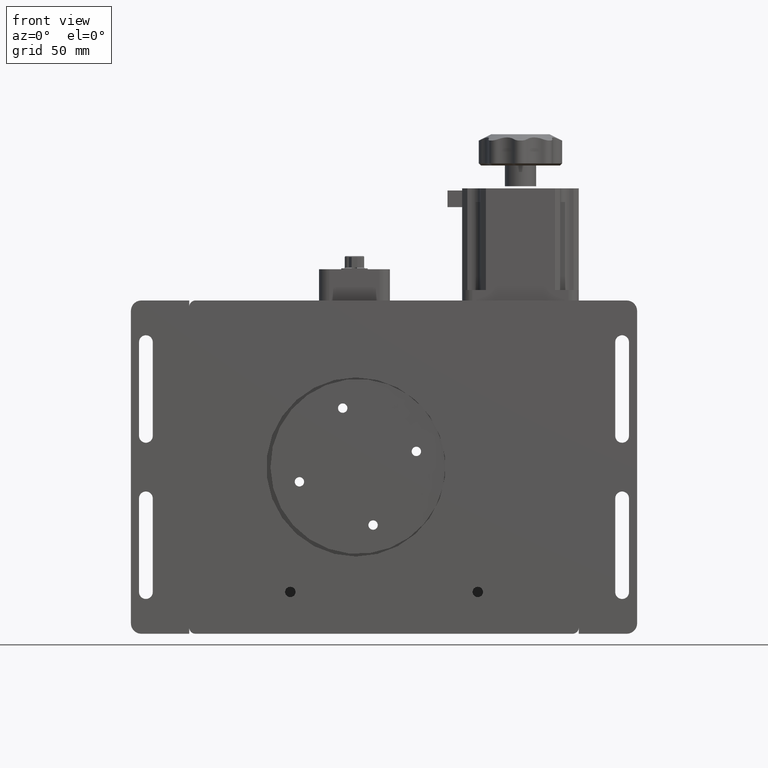
[diagram: clean part render]
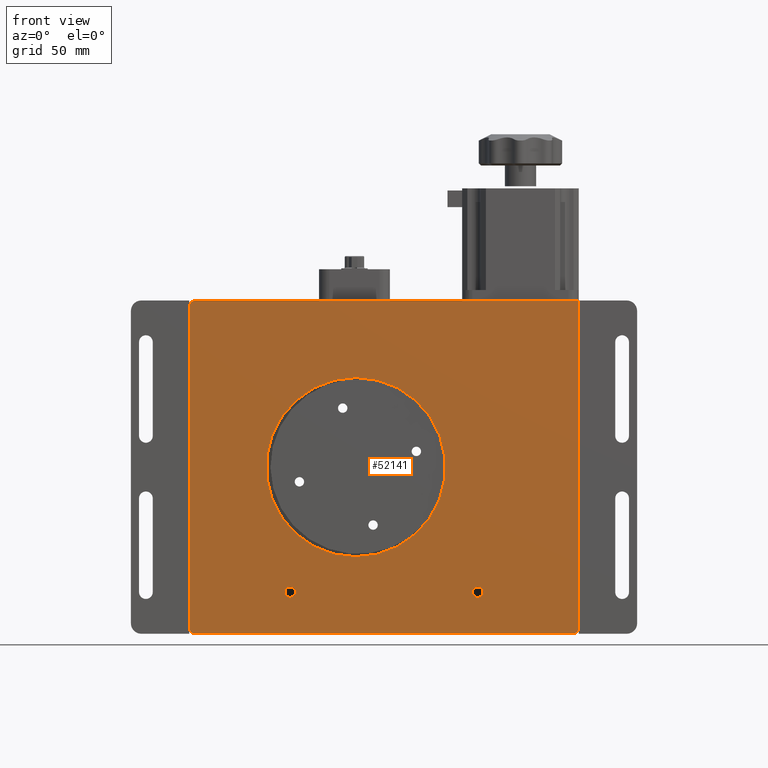
[diagram: same view with one face highlighted and labeled with its STEP entity id]
A machine part, front view. The second image highlights one B-rep face of the part: STEP entity #52141.
In plain terms, the highlighted planar face has unit normal (-0, 1, 0).
Its self-contained STEP definition (entity closure, byte-faithful):
#140 = EDGE_CURVE ( 'NONE', #11367, #93512, #4433, .T. ) ;
#1659 = CARTESIAN_POINT ( 'NONE',  ( 280.5000000000000000, -7.499999999999987600, 80.00000000000002800 ) ) ;
#1766 = CARTESIAN_POINT ( 'NONE',  ( 93.49999999999990100, -7.500000000000018700, -77.00000000000007100 ) ) ;
#3988 = VERTEX_POINT ( 'NONE', #92271 ) ;
#4433 = CIRCLE ( 'NONE', #39732, 2.500000000000002200 ) ;
#4753 = EDGE_CURVE ( 'NONE', #10643, #3988, #6222, .T. ) ;
#5509 = ORIENTED_EDGE ( 'NONE', *, *, #38265, .F. ) ;
#5746 = CIRCLE ( 'NONE', #31976, 2.500000000000002200 ) ;
#6222 = CIRCLE ( 'NONE', #96238, 43.00000000000003600 ) ;
#6587 = VECTOR ( 'NONE', #41096, 1000.000000000000000 ) ;
#6600 = DIRECTION ( 'NONE',  ( 1.782934639968039900E-017, 1.000000000000000000, 1.930919798284918700E-017 ) ) ;
#7267 = VERTEX_POINT ( 'NONE', #81796 ) ;
#8002 = DIRECTION ( 'NONE',  ( 0.0000000000000000000, 2.017120320903262400E-017, -1.000000000000000000 ) ) ;
#8379 = LINE ( 'NONE', #61908, #94763 ) ;
#8486 = EDGE_CURVE ( 'NONE', #22247, #78982, #28799, .T. ) ;
#9328 = ORIENTED_EDGE ( 'NONE', *, *, #13923, .F. ) ;
#10643 = VERTEX_POINT ( 'NONE', #53833 ) ;
#11367 = VERTEX_POINT ( 'NONE', #55139 ) ;
#11856 = CARTESIAN_POINT ( 'NONE',  ( 173.4999999999999400, -7.500000000000015100, -1.353388042383231000E-014 ) ) ;
#12109 = AXIS2_PLACEMENT_3D ( 'NONE', #36412, #94986, #44861 ) ;
#13033 = CARTESIAN_POINT ( 'NONE',  ( 277.5000000000000000, -7.499999999999991100, -80.00000000000005700 ) ) ;
#13101 = CARTESIAN_POINT ( 'NONE',  ( 96.49999999999991500, -7.500000000000015100, 80.00000000000001400 ) ) ;
#13341 = CARTESIAN_POINT ( 'NONE',  ( 173.4999999999999400, -7.500000000000015100, -1.353388042383231000E-014 ) ) ;
#13923 = EDGE_CURVE ( 'NONE', #42310, #65108, #75120, .T. ) ;
#14520 = CIRCLE ( 'NONE', #99095, 2.500000000000002200 ) ;
#14850 = DIRECTION ( 'NONE',  ( 0.0000000000000000000, 0.0000000000000000000, 1.000000000000000000 ) ) ;
#17289 = VERTEX_POINT ( 'NONE', #76413 ) ;
#17391 = FACE_OUTER_BOUND ( 'NONE', #54343, .T. ) ;
#17954 = CARTESIAN_POINT ( 'NONE',  ( 96.49999999999991500, -7.500000000000018700, -77.00000000000007100 ) ) ;
#18778 = CARTESIAN_POINT ( 'NONE',  ( 141.9999999999999400, -7.500000000000008000, -60.00000000000005700 ) ) ;
#19405 = CIRCLE ( 'NONE', #12109, 3.000000000000002700 ) ;
#20247 = DIRECTION ( 'NONE',  ( 0.0000000000000000000, 2.017120320903262400E-017, -1.000000000000000000 ) ) ;
#20285 = EDGE_LOOP ( 'NONE', ( #37882, #31510 ) ) ;
#21948 = CARTESIAN_POINT ( 'NONE',  ( 231.9999999999999400, -7.499999999999998200, -60.00000000000005000 ) ) ;
#22247 = VERTEX_POINT ( 'NONE', #57392 ) ;
#23472 = CARTESIAN_POINT ( 'NONE',  ( 231.9999999999999400, -7.499999999999998200, -62.50000000000005700 ) ) ;
#24406 = AXIS2_PLACEMENT_3D ( 'NONE', #83865, #33693, #92262 ) ;
#26317 = DIRECTION ( 'NONE',  ( -1.000000000000000000, 0.0000000000000000000, 0.0000000000000000000 ) ) ;
#27190 = DIRECTION ( 'NONE',  ( 0.0000000000000000000, 0.0000000000000000000, 1.000000000000000000 ) ) ;
#27804 = LINE ( 'NONE', #35460, #69748 ) ;
#28799 = LINE ( 'NONE', #64629, #6587 ) ;
#30342 = DIRECTION ( 'NONE',  ( 0.0000000000000000000, 0.0000000000000000000, 1.000000000000000000 ) ) ;
#30994 = CIRCLE ( 'NONE', #70712, 3.000000000000002700 ) ;
#31510 = ORIENTED_EDGE ( 'NONE', *, *, #69913, .F. ) ;
#31923 = EDGE_LOOP ( 'NONE', ( #58412, #89432 ) ) ;
#31976 = AXIS2_PLACEMENT_3D ( 'NONE', #39770, #98351, #48241 ) ;
#32832 = ORIENTED_EDGE ( 'NONE', *, *, #97424, .T. ) ;
#33693 = DIRECTION ( 'NONE',  ( -1.120429993953745500E-016, 1.000000000000000000, 1.930919798284919300E-017 ) ) ;
#35460 = CARTESIAN_POINT ( 'NONE',  ( 93.49999999999990100, -7.500000000000015100, 80.00000000000001400 ) ) ;
#36412 = CARTESIAN_POINT ( 'NONE',  ( 96.49999999999991500, -7.500000000000011500, 77.00000000000001400 ) ) ;
#37882 = ORIENTED_EDGE ( 'NONE', *, *, #140, .F. ) ;
#38265 = EDGE_CURVE ( 'NONE', #87396, #17289, #14520, .T. ) ;
#39004 = AXIS2_PLACEMENT_3D ( 'NONE', #17954, #76508, #26317 ) ;
#39732 = AXIS2_PLACEMENT_3D ( 'NONE', #89551, #71622, #14850 ) ;
#39770 = CARTESIAN_POINT ( 'NONE',  ( 141.9999999999999400, -7.500000000000008000, -60.00000000000005700 ) ) ;
#40145 = DIRECTION ( 'NONE',  ( 1.120429993953747700E-016, -1.000000000000000000, -1.930919798284919300E-017 ) ) ;
#40432 = CARTESIAN_POINT ( 'NONE',  ( 280.5000000000000000, -7.499999999999991100, -77.00000000000005700 ) ) ;
#41096 = DIRECTION ( 'NONE',  ( -5.551115123125781500E-017, 1.930919798284917800E-017, -1.000000000000000000 ) ) ;
#41455 = ORIENTED_EDGE ( 'NONE', *, *, #8486, .T. ) ;
#42310 = VERTEX_POINT ( 'NONE', #58778 ) ;
#44861 = DIRECTION ( 'NONE',  ( -1.000000000000000000, 0.0000000000000000000, 0.0000000000000000000 ) ) ;
#47602 = VERTEX_POINT ( 'NONE', #13101 ) ;
#48241 = DIRECTION ( 'NONE',  ( 0.0000000000000000000, 0.0000000000000000000, 1.000000000000000000 ) ) ;
#50143 = EDGE_CURVE ( 'NONE', #3988, #10643, #50590, .T. ) ;
#50431 = EDGE_CURVE ( 'NONE', #78982, #7267, #108042, .T. ) ;
#50590 = CIRCLE ( 'NONE', #74800, 43.00000000000003600 ) ;
#51705 = DIRECTION ( 'NONE',  ( -5.551115123125781500E-017, 1.930919798284917800E-017, -1.000000000000000000 ) ) ;
#52141 = ADVANCED_FACE ( 'NONE', ( #103775, #84174, #61956, #17391 ), #83141, .F. ) ;
#53833 = CARTESIAN_POINT ( 'NONE',  ( 173.4999999999999400, -7.500000000000016000, 43.00000000000000000 ) ) ;
#54049 = CARTESIAN_POINT ( 'NONE',  ( 141.9999999999999400, -7.500000000000008000, -57.50000000000005000 ) ) ;
#54343 = EDGE_LOOP ( 'NONE', ( #63516, #55480, #41455, #97028, #32832, #79620, #9328 ) ) ;
#54731 = AXIS2_PLACEMENT_3D ( 'NONE', #21948, #80497, #30342 ) ;
#55139 = CARTESIAN_POINT ( 'NONE',  ( 231.9999999999999400, -7.499999999999998200, -57.50000000000004300 ) ) ;
#55480 = ORIENTED_EDGE ( 'NONE', *, *, #55985, .T. ) ;
#55985 = EDGE_CURVE ( 'NONE', #47602, #22247, #19405, .T. ) ;
#57392 = CARTESIAN_POINT ( 'NONE',  ( 93.49999999999990100, -7.500000000000015100, 77.00000000000001400 ) ) ;
#58412 = ORIENTED_EDGE ( 'NONE', *, *, #50143, .T. ) ;
#58778 = CARTESIAN_POINT ( 'NONE',  ( 280.5000000000000000, -7.499999999999987600, 80.00000000000002800 ) ) ;
#61908 = CARTESIAN_POINT ( 'NONE',  ( 93.49999999999990100, -7.500000000000018700, -80.00000000000007100 ) ) ;
#61956 = FACE_BOUND ( 'NONE', #31923, .T. ) ;
#63516 = ORIENTED_EDGE ( 'NONE', *, *, #69766, .F. ) ;
#64629 = CARTESIAN_POINT ( 'NONE',  ( 93.49999999999990100, -7.500000000000015100, 80.00000000000001400 ) ) ;
#65106 = ORIENTED_EDGE ( 'NONE', *, *, #101677, .F. ) ;
#65108 = VERTEX_POINT ( 'NONE', #40432 ) ;
#68723 = EDGE_CURVE ( 'NONE', #79190, #65108, #30994, .T. ) ;
#69212 = DIRECTION ( 'NONE',  ( 1.000000000000000000, 1.120429993953745500E-016, -5.551115123125781500E-017 ) ) ;
#69748 = VECTOR ( 'NONE', #69212, 1000.000000000000000 ) ;
#69766 = EDGE_CURVE ( 'NONE', #47602, #42310, #27804, .T. ) ;
#69913 = EDGE_CURVE ( 'NONE', #93512, #11367, #88017, .T. ) ;
#70309 = DIRECTION ( 'NONE',  ( 1.000000000000000000, 1.120429993953745500E-016, -5.551115123125781500E-017 ) ) ;
#70408 = DIRECTION ( 'NONE',  ( 1.782934639968039900E-017, 1.000000000000000000, 1.930919798284918700E-017 ) ) ;
#70712 = AXIS2_PLACEMENT_3D ( 'NONE', #90330, #40145, #98702 ) ;
#71622 = DIRECTION ( 'NONE',  ( -1.782934639968039900E-017, -1.000000000000000000, -1.930919798284918700E-017 ) ) ;
#74800 = AXIS2_PLACEMENT_3D ( 'NONE', #11856, #70408, #20247 ) ;
#75120 = LINE ( 'NONE', #1659, #97393 ) ;
#76413 = CARTESIAN_POINT ( 'NONE',  ( 141.9999999999999400, -7.500000000000008000, -62.50000000000005700 ) ) ;
#76508 = DIRECTION ( 'NONE',  ( 1.120429993953747700E-016, -1.000000000000000000, -1.930919798284919300E-017 ) ) ;
#77358 = DIRECTION ( 'NONE',  ( -1.782934639968039900E-017, -1.000000000000000000, -1.930919798284918700E-017 ) ) ;
#78982 = VERTEX_POINT ( 'NONE', #1766 ) ;
#79190 = VERTEX_POINT ( 'NONE', #13033 ) ;
#79620 = ORIENTED_EDGE ( 'NONE', *, *, #68723, .T. ) ;
#80497 = DIRECTION ( 'NONE',  ( -1.782934639968039900E-017, -1.000000000000000000, -1.930919798284918700E-017 ) ) ;
#81796 = CARTESIAN_POINT ( 'NONE',  ( 96.49999999999991500, -7.500000000000018700, -80.00000000000007100 ) ) ;
#83141 = PLANE ( 'NONE',  #24406 ) ;
#83865 = CARTESIAN_POINT ( 'NONE',  ( 93.49999999999990100, -7.500000000000015100, 80.00000000000001400 ) ) ;
#84174 = FACE_BOUND ( 'NONE', #20285, .T. ) ;
#87396 = VERTEX_POINT ( 'NONE', #54049 ) ;
#88017 = CIRCLE ( 'NONE', #54731, 2.500000000000002200 ) ;
#89432 = ORIENTED_EDGE ( 'NONE', *, *, #4753, .T. ) ;
#89551 = CARTESIAN_POINT ( 'NONE',  ( 231.9999999999999400, -7.499999999999998200, -60.00000000000005000 ) ) ;
#90330 = CARTESIAN_POINT ( 'NONE',  ( 277.5000000000000000, -7.499999999999991100, -77.00000000000005700 ) ) ;
#92262 = DIRECTION ( 'NONE',  ( -1.000000000000000000, -1.120429993953745500E-016, 5.551115123125781500E-017 ) ) ;
#92271 = CARTESIAN_POINT ( 'NONE',  ( 173.4999999999999400, -7.500000000000014200, -43.00000000000005000 ) ) ;
#93512 = VERTEX_POINT ( 'NONE', #23472 ) ;
#94763 = VECTOR ( 'NONE', #70309, 1000.000000000000000 ) ;
#94986 = DIRECTION ( 'NONE',  ( 1.120429993953747700E-016, -1.000000000000000000, -1.930919798284919300E-017 ) ) ;
#96106 = EDGE_LOOP ( 'NONE', ( #5509, #65106 ) ) ;
#96238 = AXIS2_PLACEMENT_3D ( 'NONE', #13341, #6600, #8002 ) ;
#97028 = ORIENTED_EDGE ( 'NONE', *, *, #50431, .T. ) ;
#97393 = VECTOR ( 'NONE', #51705, 1000.000000000000000 ) ;
#97424 = EDGE_CURVE ( 'NONE', #7267, #79190, #8379, .T. ) ;
#98351 = DIRECTION ( 'NONE',  ( -1.782934639968039900E-017, -1.000000000000000000, -1.930919798284918700E-017 ) ) ;
#98702 = DIRECTION ( 'NONE',  ( -1.000000000000000000, 0.0000000000000000000, 0.0000000000000000000 ) ) ;
#99095 = AXIS2_PLACEMENT_3D ( 'NONE', #18778, #77358, #27190 ) ;
#101677 = EDGE_CURVE ( 'NONE', #17289, #87396, #5746, .T. ) ;
#103775 = FACE_BOUND ( 'NONE', #96106, .T. ) ;
#108042 = CIRCLE ( 'NONE', #39004, 3.000000000000002700 ) ;